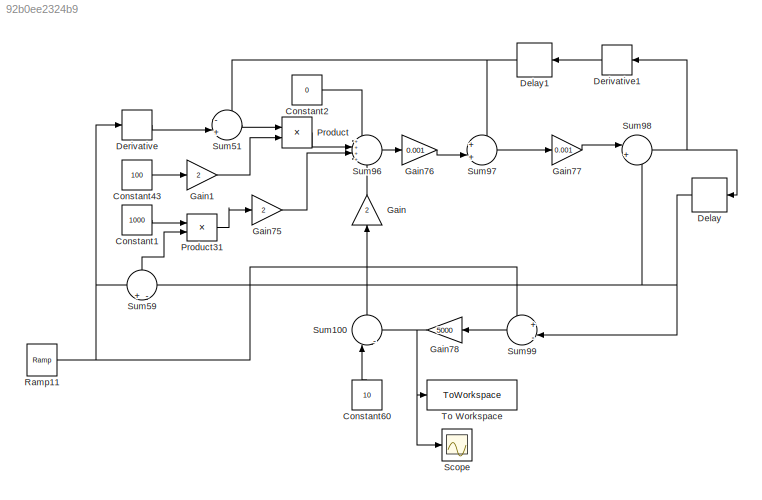
MODEL slx_92b0ee2324b9
KIND model
CONFIG AbsTol = auto
CONFIG EnableMultiTasking = off
CONFIG FixedStep = 0.001
CONFIG MaxStep = auto
CONFIG MinStep = auto
CONFIG RelTol = 1e-3
CONFIG SampleTimeConstraint = Unconstrained
CONFIG SolverName = FixedStepAuto
CONFIG StartTime = 0.0
CONFIG StopTime = 5
BLOCK [Constant] Constant1
  Value = 1000
BLOCK [Constant] Constant2
  Value = 0
BLOCK [Constant] Constant43
  Value = 100
BLOCK [Constant] Constant60
  NameLocation = left
  Value = 10
BLOCK [Delay] Delay
  DelayLength = 1
  InitialCondition = 0
  InputPortMap = u0
  Ports = [1, 1]
BLOCK [Delay] Delay1
  DelayLength = 1
  InitialCondition = 0
  InputPortMap = u0
  Ports = [1, 1]
BLOCK [Derivative] Derivative
BLOCK [Derivative] Derivative1
BLOCK [Gain] Gain
  Gain = 2
  NameLocation = right
BLOCK [Gain] Gain1
  Gain = 2
BLOCK [Gain] Gain75
  Gain = 2
BLOCK [Gain] Gain76
  Gain = 0.001
BLOCK [Gain] Gain77
  Gain = 0.001
BLOCK [Gain] Gain78
  Gain = 5000
BLOCK [Product] Product
  Ports = [2, 1]
BLOCK [Product] Product31
  Ports = [2, 1]
BLOCK [Reference] Ramp11  REF=simulink/Sources/Ramp
  Ports = [0, 1]
  SourceBlock = simulink/Sources/Ramp
  SourceProductBaseCode = SL
  SourceType = Ramp
BLOCK [Scope] Scope
  Floating = off
  NumInputPorts = 1
  Ports = [1]
  ScopeSpecificationString = Simulink.scopes.TimeScopeBlockCfg('CurrentConfiguration', extmgr.ConfigurationSet(extmgr.Configuration('Core','General UI',true),extmgr.Configuration('Core','Source UI',true),extmgr.Configuration('Sources','WiredSimulink',true),extmgr.Configuration('Visuals','Time Domain',true,'SerializedDisplays',{struct('MinYLimReal','-1.04168','MaxYLimReal','9.37515','YLabelReal','','MinYLimMag','0.00000','MaxY...<+1326ch>
BLOCK [Sum] Sum100
  Inputs = ||-|+
  NameLocation = left
  Ports = [2, 1]
BLOCK [Sum] Sum51
  Inputs = -|+||
  Ports = [2, 1]
BLOCK [Sum] Sum59
  Inputs = +-
  NameLocation = right
  Ports = [2, 1]
BLOCK [Sum] Sum96
  Inputs = ++++
  Ports = [4, 1]
BLOCK [Sum] Sum97
  Inputs = +|+||
  Ports = [2, 1]
BLOCK [Sum] Sum98
  Inputs = |++
  Ports = [2, 1]
BLOCK [Sum] Sum99
  Inputs = +|-||
  Ports = [2, 1]
BLOCK [ToWorkspace] To Workspace
  FixptAsFi = on
  MaxDataPoints = inf
  Ports = [1]
  SampleTime = -1
  SaveFormat = Timeseries
  VariableName = fe
LINE Constant1:1 -> Product31:1
LINE Constant2:1 -> Sum96:1
LINE Constant43:1 -> Gain1:1
LINE Constant60:1 -> Sum100:1
NET Delay1:1 -> Sum51:1, Sum97:1
NET Delay:1 -> Sum59:2, Sum98:2, Sum99:2
LINE Derivative1:1 -> Delay1:1
LINE Derivative:1 -> Sum51:2
LINE Gain1:1 -> Product:2
LINE Gain75:1 -> Sum96:3
LINE Gain76:1 -> Sum97:2
LINE Gain77:1 -> Sum98:1
NET Gain78:1 -> Scope:1, Sum100:2, To Workspace:1
LINE Gain:1 -> Sum96:4
LINE Product31:1 -> Gain75:1
LINE Product:1 -> Sum96:2
NET Ramp11:1 -> Derivative:1, Sum59:1, Sum99:1
LINE Sum100:1 -> Gain:1
LINE Sum51:1 -> Product:1
LINE Sum59:1 -> Product31:2
LINE Sum96:1 -> Gain76:1
LINE Sum97:1 -> Gain77:1
NET Sum98:1 -> Delay:1, Derivative1:1
LINE Sum99:1 -> Gain78:1
note: NET lines group one-source signal fan-out (src -> all destinations, sorted); 1:1 wires keep LINE
